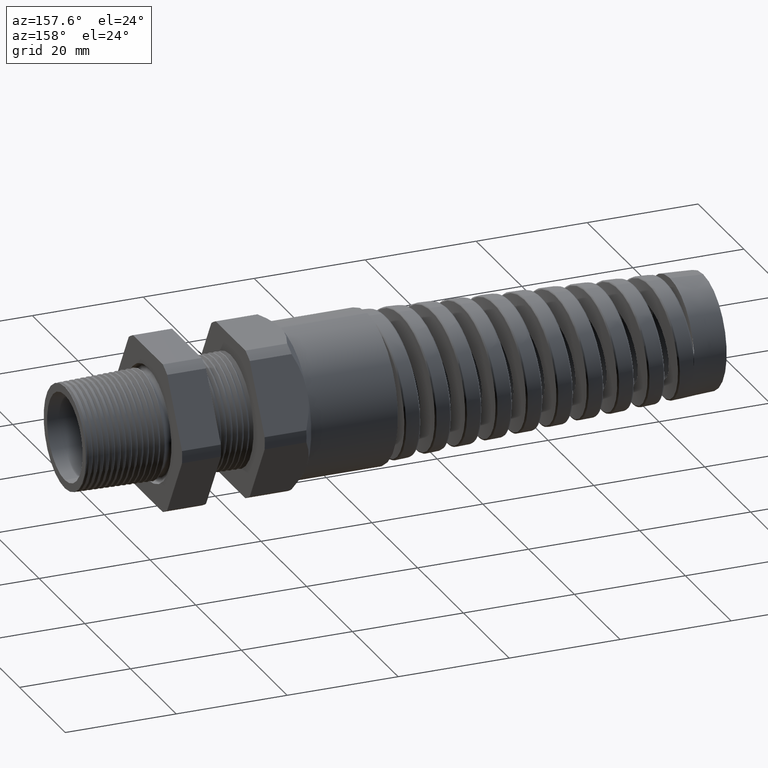
[diagram: clean part render]
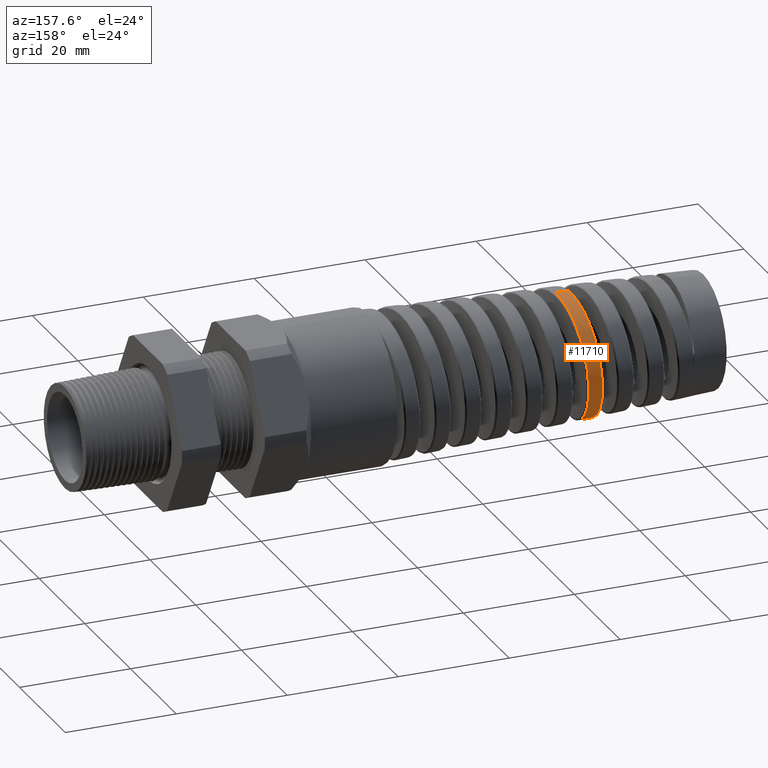
[diagram: same view with one face highlighted and labeled with its STEP entity id]
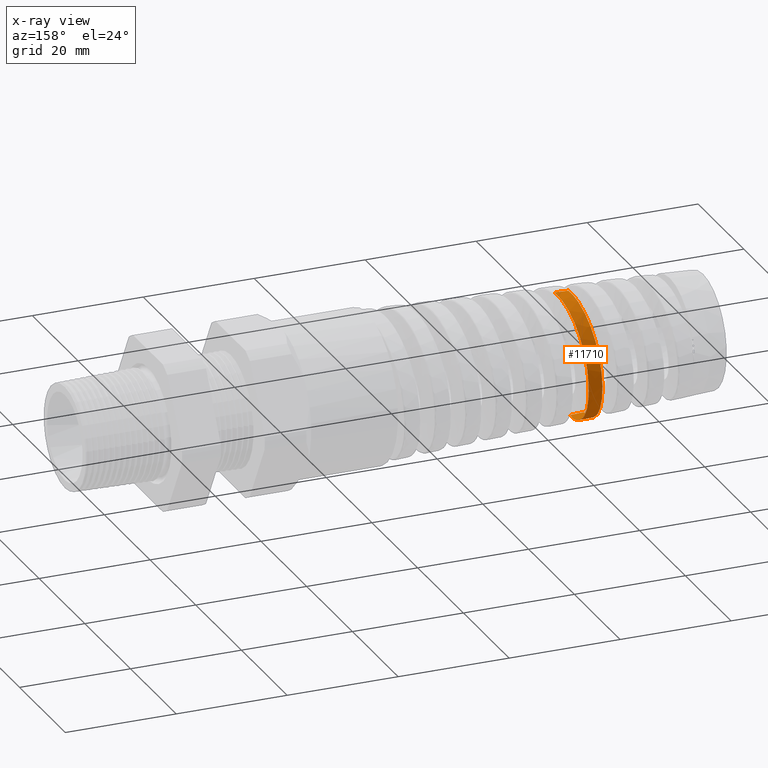
[diagram: x-ray of the same camera — body ghosted, the highlighted face saturated]
A machine part, auxiliary view. The second image highlights one B-rep face of the part: STEP entity #11710.
The next image is the same camera in x-ray: the body ghosted, the highlighted face saturated — about 0% of this face is hidden behind the body in this view.
In plain terms, the highlighted conical surface has half-angle 2.5 deg.
Its self-contained STEP definition (entity closure, byte-faithful):
#8518 = CARTESIAN_POINT ( 'NONE',  ( -3.367031305301783700, 0.3860928506320817600, -0.2208480517431465600 ) ) ;
#8519 = CARTESIAN_POINT ( 'NONE',  ( -3.368196545270383300, 0.3785036603353476600, -0.2335203228107358700 ) ) ;
#8520 = CARTESIAN_POINT ( 'NONE',  ( -3.371656273184212800, 0.3541431900587626000, -0.2699737989833829700 ) ) ;
#8521 = CARTESIAN_POINT ( 'NONE',  ( -3.373931672052358400, 0.3357246574495469400, -0.2923959071443837400 ) ) ;
#8522 = CARTESIAN_POINT ( 'NONE',  ( -3.378521007138563600, 0.2945981801766688900, -0.3335271060106560500 ) ) ;
#8523 = CARTESIAN_POINT ( 'NONE',  ( -3.380853890803841000, 0.2716590228567579100, -0.3523334297242982600 ) ) ;
#8524 = CARTESIAN_POINT ( 'NONE',  ( -3.385452934840462700, 0.2232762630547042400, -0.3845867024945759900 ) ) ;
#8525 = CARTESIAN_POINT ( 'NONE',  ( -3.387735882063358100, 0.1976752809022793400, -0.3982527912921002300 ) ) ;
#8526 = CARTESIAN_POINT ( 'NONE',  ( -3.391200923665438300, 0.1571248361874358900, -0.4149902268562945500 ) ) ;
#8527 = CARTESIAN_POINT ( 'NONE',  ( -3.392365993333061900, 0.1432116091832861300, -0.4199399008667468200 ) ) ;
#8528 = CARTESIAN_POINT ( 'NONE',  ( -3.394672662137165500, 0.1152653071098163300, -0.4283499550344370100 ) ) ;
#8529 = CARTESIAN_POINT ( 'NONE',  ( -3.396968235514727500, 0.08705682681685479600, -0.4353380223494181500 ) ) ;
#8530 = CARTESIAN_POINT ( 'NONE',  ( -3.399264514733427900, 0.05833493903158334200, -0.4395316293767078100 ) ) ;
#8531 = CARTESIAN_POINT ( 'NONE',  ( -3.401571107459511600, 0.02935425207513858700, -0.4423122194634988000 ) ) ;
#8532 = CARTESIAN_POINT ( 'NONE',  ( -3.402734380631594800, 0.01467357891013543200, -0.4429953379754140200 ) ) ;
#8533 = CARTESIAN_POINT ( 'NONE',  ( -3.403896130082235700, -2.793416318180109300E-016, -0.4429446148989755700 ) ) ;
#8534 = CARTESIAN_POINT ( 'NONE',  ( -3.293722496634710500, 9.699927423887607600E-013, 0.4477548996189513700 ) ) ;
#8535 = B_SPLINE_CURVE_WITH_KNOTS ( 'NONE', 3,
 ( #8533, #8532, #8531, #8530, #8529, #8528, #8527, #8526, #8525, #8524, #8523, #8522, #8521, #8520, #8519, #8518, #8589, #8588, #8587, #8586, #8585, #8584, #8583, #8582, #8581, #8580, #8579, #8578, #8577, #8576, #8575, #8574, #8573, #8572, #8571, #8570, #8569, #8568, #8567, #8566, #8565, #8564, #8563, #8562, #8561, #8560, #8559, #8558, #8557, #8556 ),
 .UNSPECIFIED., .F., .F.,
 ( 4, 2, 1, 2, 2, 2, 2, 2, 2, 2, 2, 2, 2, 2, 2, 2, 2, 2, 2, 2, 1, 2, 2, 2, 2, 4 ),
 ( 0.1916504313071185400, 0.1927718956376086300, 0.1938933599680987300, 0.1950148242985888200, 0.1961362886290789200, 0.1983792172900591400, 0.2006221459510393300, 0.2028650746120195200, 0.2039865389425096200, 0.2051080032729997200, 0.2062294676034898100, 0.2073509319339799100, 0.2095938605949601000, 0.2107153249254502300, 0.2118367892559403200, 0.2140797179169205100, 0.2152011822474106400, 0.2163226465779007300, 0.2185655752388809300, 0.2196870395693710200, 0.2208085038998611500, 0.2219299682303512400, 0.2230514325608413400, 0.2252943612218215600, 0.2264158255523116600, 0.2275372898828017500 ),
 .UNSPECIFIED. ) ;
#8536 = CARTESIAN_POINT ( 'NONE',  ( -3.403896130082235700, -2.793416318180109300E-016, -0.4429446148989755700 ) ) ;
#8537 = DIRECTION ( 'NONE',  ( 0.0000000000000000000, 0.0000000000000000000, -1.000000000000000000 ) ) ;
#8538 = DIRECTION ( 'NONE',  ( 1.000000000000000000, 0.0000000000000000000, 0.0000000000000000000 ) ) ;
#8539 = CARTESIAN_POINT ( 'NONE',  ( -1.409999999999999900, 0.0000000000000000000, 0.0000000000000000000 ) ) ;
#8540 = AXIS2_PLACEMENT_3D ( 'NONE', #8539, #8538, #8537 ) ;
#8541 = CONICAL_SURFACE ( 'NONE', #8540, 0.5299999999999998000, 0.04363323129985853500 ) ;
#8542 = FACE_OUTER_BOUND ( 'NONE', #11711, .T. ) ;
#8551 = CARTESIAN_POINT ( 'NONE',  ( -3.194580830620718200, 1.628636239715142200E-016, 0.4520835182386430700 ) ) ;
#8552 = DIRECTION ( 'NONE',  ( 0.9990482215818576900, 5.341834311772759500E-018, 0.04361938736533629800 ) ) ;
#8553 = VECTOR ( 'NONE', #8552, 39.37007874015748100 ) ;
#8554 = CARTESIAN_POINT ( 'NONE',  ( -1.409999999999999900, 6.490628035480970000E-017, 0.5299999999999998000 ) ) ;
#8555 = LINE ( 'NONE', #8554, #8553 ) ;
#8556 = CARTESIAN_POINT ( 'NONE',  ( -3.293722496634710500, 9.699927423887607600E-013, 0.4477548996189513700 ) ) ;
#8557 = CARTESIAN_POINT ( 'NONE',  ( -3.294862992153494200, 0.01455632133746561800, 0.4477051045091865500 ) ) ;
#8558 = CARTESIAN_POINT ( 'NONE',  ( -3.296013603617002000, 0.02922847881703444900, 0.4469406481647246700 ) ) ;
#8559 = CARTESIAN_POINT ( 'NONE',  ( -3.298315589847282200, 0.05842832421868598300, 0.4439666690078814500 ) ) ;
#8560 = CARTESIAN_POINT ( 'NONE',  ( -3.299458203064546100, 0.07284483074494953200, 0.4417746942496169100 ) ) ;
#8561 = CARTESIAN_POINT ( 'NONE',  ( -3.302873593262815700, 0.1155596988243774300, 0.4331474966600551400 ) ) ;
#8562 = CARTESIAN_POINT ( 'NONE',  ( -3.305134949618273100, 0.1433283042973972400, 0.4246800676644632600 ) ) ;
#8563 = CARTESIAN_POINT ( 'NONE',  ( -3.308577826082505600, 0.1838868420724205400, 0.4078039895763990700 ) ) ;
#8564 = CARTESIAN_POINT ( 'NONE',  ( -3.309732935111467300, 0.1972061836554490100, 0.4014737223511588000 ) ) ;
#8565 = CARTESIAN_POINT ( 'NONE',  ( -3.312020895158147100, 0.2228933793844483600, 0.3876862948019258500 ) ) ;
#8566 = CARTESIAN_POINT ( 'NONE',  ( -3.314299353199893400, 0.2477815342513340600, 0.3727130761028423800 ) ) ;
#8567 = CARTESIAN_POINT ( 'NONE',  ( -3.316578375427750500, 0.2710939291386337800, 0.3554041235777501400 ) ) ;
#8568 = CARTESIAN_POINT ( 'NONE',  ( -3.318865754082336700, 0.2936072331850120300, 0.3369118246992327000 ) ) ;
#8569 = CARTESIAN_POINT ( 'NONE',  ( -3.320019677127271900, 0.3045168517258016200, 0.3270197215245543300 ) ) ;
#8570 = CARTESIAN_POINT ( 'NONE',  ( -3.323469424973764400, 0.3355903305285569100, 0.2959079623354984900 ) ) ;
#8571 = CARTESIAN_POINT ( 'NONE',  ( -3.325737339212635500, 0.3539888243025586800, 0.2734410562300276200 ) ) ;
#8572 = CARTESIAN_POINT ( 'NONE',  ( -3.329161831239481700, 0.3782008782008423600, 0.2372259761421035300 ) ) ;
#8573 = CARTESIAN_POINT ( 'NONE',  ( -3.330306917552825500, 0.3857032847263169300, 0.2247321734212437100 ) ) ;
#8574 = CARTESIAN_POINT ( 'NONE',  ( -3.332614535608780400, 0.3995373012401914300, 0.1988759046568426800 ) ) ;
#8575 = CARTESIAN_POINT ( 'NONE',  ( -3.333771653952269300, 0.4058289816055291000, 0.1855709445503184200 ) ) ;
#8576 = CARTESIAN_POINT ( 'NONE',  ( -3.337207756871700700, 0.4225532160756768600, 0.1452068508578617200 ) ) ;
#8577 = CARTESIAN_POINT ( 'NONE',  ( -3.339474852809909900, 0.4309926820378408600, 0.1174535881184601800 ) ) ;
#8578 = CARTESIAN_POINT ( 'NONE',  ( -3.342914678529534300, 0.4395673176670109600, 0.07455800236112893100 ) ) ;
#8579 = CARTESIAN_POINT ( 'NONE',  ( -3.344074248631328400, 0.4417454704162236400, 0.05996462577478257900 ) ) ;
#8580 = CARTESIAN_POINT ( 'NONE',  ( -3.346379275924301000, 0.4446284118958274700, 0.03083376603887695600 ) ) ;
#8581 = CARTESIAN_POINT ( 'NONE',  ( -3.347525002502067500, 0.4453442208944755100, 0.01629454590489599900 ) ) ;
#8582 = CARTESIAN_POINT ( 'NONE',  ( -3.350957031828650600, 0.4453685202142671500, -0.02724526568593115700 ) ) ;
#8583 = CARTESIAN_POINT ( 'NONE',  ( -3.353235420849962200, 0.4425744662910391400, -0.05616898588576020600 ) ) ;
#8584 = CARTESIAN_POINT ( 'NONE',  ( -3.356703814741866400, 0.4340126217496392800, -0.09938943904794311800 ) ) ;
#8585 = CARTESIAN_POINT ( 'NONE',  ( -3.357857150330217300, 0.4304499930933023400, -0.1136187452072945400 ) ) ;
#8586 = CARTESIAN_POINT ( 'NONE',  ( -3.360149381920144700, 0.4220116024355653500, -0.1414693260830070800 ) ) ;
#8587 = CARTESIAN_POINT ( 'NONE',  ( -3.361291681973387600, 0.4171274918349587300, -0.1551332932783174300 ) ) ;
#8588 = CARTESIAN_POINT ( 'NONE',  ( -3.363579902431608600, 0.4060415948426029900, -0.1819424061593731000 ) ) ;
#8589 = CARTESIAN_POINT ( 'NONE',  ( -3.364725805885398400, 0.3998398435142586100, -0.1950875670860182400 ) ) ;
#8590 = CARTESIAN_POINT ( 'NONE',  ( -3.282583523410094600, 0.2621681050190832800, -0.3638718244695826100 ) ) ;
#8591 = CARTESIAN_POINT ( 'NONE',  ( -3.281440430440820700, 0.2739742991853760200, -0.3551350785250692000 ) ) ;
#8592 = CARTESIAN_POINT ( 'NONE',  ( -3.279140598003530200, 0.2968067816084102900, -0.3364202928968831900 ) ) ;
#8593 = CARTESIAN_POINT ( 'NONE',  ( -3.277980583691391600, 0.3078573554151103900, -0.3264068534933281000 ) ) ;
#8594 = CARTESIAN_POINT ( 'NONE',  ( -3.274536358425275600, 0.3391123627046863100, -0.2951386176678336700 ) ) ;
#8595 = CARTESIAN_POINT ( 'NONE',  ( -3.272263332115488100, 0.3576849421215683200, -0.2724877576314735900 ) ) ;
#8596 = CARTESIAN_POINT ( 'NONE',  ( -3.268825382691723700, 0.3821756935219945400, -0.2358320450154959000 ) ) ;
#8597 = CARTESIAN_POINT ( 'NONE',  ( -3.267670720263642400, 0.3897988414673159700, -0.2231163309756956400 ) ) ;
#8598 = CARTESIAN_POINT ( 'NONE',  ( -3.265362285570441200, 0.4037571662343680800, -0.1969636543734687700 ) ) ;
#8599 = CARTESIAN_POINT ( 'NONE',  ( -3.264218112402853300, 0.4100365654951855200, -0.1836432862415699800 ) ) ;
#8600 = CARTESIAN_POINT ( 'NONE',  ( -3.260795899704928700, 0.4268405199831540900, -0.1429743394918893100 ) ) ;
#8601 = CARTESIAN_POINT ( 'NONE',  ( -3.258527931783600500, 0.4353499717068839400, -0.1149245899072610500 ) ) ;
#8602 = CARTESIAN_POINT ( 'NONE',  ( -3.255075708772611400, 0.4439781454017640600, -0.07141668192033012700 ) ) ;
#8603 = CARTESIAN_POINT ( 'NONE',  ( -3.253917690592357500, 0.4461470333263903900, -0.05668529532709922600 ) ) ;
#8604 = CARTESIAN_POINT ( 'NONE',  ( -3.251625990148630400, 0.4489991437346120800, -0.02738845588538887200 ) ) ;
#8605 = CARTESIAN_POINT ( 'NONE',  ( -3.250485907808339000, 0.4497005573260614600, -0.01274215841037834200 ) ) ;
#8606 = CARTESIAN_POINT ( 'NONE',  ( -3.248209061847441100, 0.4496761092122282800, 0.01654562829935311500 ) ) ;
#8607 = CARTESIAN_POINT ( 'NONE',  ( -3.247071948064516300, 0.4489502504187322100, 0.03118709019094721700 ) ) ;
#8608 = CARTESIAN_POINT ( 'NONE',  ( -3.244787735419034600, 0.4460524417431203600, 0.06046409968243710700 ) ) ;
#8609 = CARTESIAN_POINT ( 'NONE',  ( -3.243634592455172200, 0.4438638675512729400, 0.07517590796990544800 ) ) ;
#8610 = CARTESIAN_POINT ( 'NONE',  ( -3.240187888643149000, 0.4351642012109387400, 0.1187052318368900900 ) ) ;
#8611 = CARTESIAN_POINT ( 'NONE',  ( -3.237920274135252200, 0.4266111539188423600, 0.1467484574763799600 ) ) ;
#8612 = CARTESIAN_POINT ( 'NONE',  ( -3.234501183467858100, 0.4097666199282412000, 0.1873844589012359000 ) ) ;
#8613 = CARTESIAN_POINT ( 'NONE',  ( -3.233358797177967100, 0.4034778226038889800, 0.2006899706881838900 ) ) ;
#8614 = CARTESIAN_POINT ( 'NONE',  ( -3.231060240938439700, 0.3895125563927291400, 0.2268065165232945900 ) ) ;
#8615 = CARTESIAN_POINT ( 'NONE',  ( -3.229909943242326200, 0.3818675642342462800, 0.2395423753721418700 ) ) ;
#8616 = CARTESIAN_POINT ( 'NONE',  ( -3.226490935284006800, 0.3573457543734623900, 0.2762072934374993900 ) ) ;
#8617 = CARTESIAN_POINT ( 'NONE',  ( -3.224232186639433500, 0.3387699687160152800, 0.2988524516826845400 ) ) ;
#8618 = CARTESIAN_POINT ( 'NONE',  ( -3.220805552374220500, 0.3075556066120102000, 0.3301089345825136700 ) ) ;
#8619 = CARTESIAN_POINT ( 'NONE',  ( -3.219650609970384100, 0.2965225170314449400, 0.3401231555349136200 ) ) ;
#8620 = CARTESIAN_POINT ( 'NONE',  ( -3.217357424285682800, 0.2736863558580776600, 0.3588808452618892400 ) ) ;
#8621 = CARTESIAN_POINT ( 'NONE',  ( -3.216218488864355200, 0.2618838012535080200, 0.3676381524965988100 ) ) ;
#8622 = CARTESIAN_POINT ( 'NONE',  ( -3.212812219768129900, 0.2253522316947595100, 0.3920914219332697900 ) ) ;
#8623 = CARTESIAN_POINT ( 'NONE',  ( -3.210554121751561000, 0.1995101370949145500, 0.4059860723750489100 ) ) ;
#8624 = CARTESIAN_POINT ( 'NONE',  ( -3.207111461713438900, 0.1584412496675062800, 0.4230855701599811100 ) ) ;
#8625 = CARTESIAN_POINT ( 'NONE',  ( -3.205966310454970300, 0.1445030421154544800, 0.4280946258624143100 ) ) ;
#8626 = CARTESIAN_POINT ( 'NONE',  ( -3.203690770066065500, 0.1164008026610181500, 0.4366769207629327400 ) ) ;
#8627 = CARTESIAN_POINT ( 'NONE',  ( -3.201423210735673000, 0.08799160307989926900, 0.4438573780116052400 ) ) ;
#8628 = CARTESIAN_POINT ( 'NONE',  ( -3.199152499431161500, 0.05897591783563659700, 0.4482612181277906800 ) ) ;
#8629 = CARTESIAN_POINT ( 'NONE',  ( -3.196872184893963200, 0.02965189763601432800, 0.4512505215322421500 ) ) ;
#8630 = CARTESIAN_POINT ( 'NONE',  ( -3.195721170336528200, 0.01476033763390118500, 0.4520337299314147700 ) ) ;
#8631 = CARTESIAN_POINT ( 'NONE',  ( -3.194580830620718200, 1.628636239715142200E-016, 0.4520835182386430700 ) ) ;
#8632 = B_SPLINE_CURVE_WITH_KNOTS ( 'NONE', 3,
 ( #8631, #8630, #8629, #8628, #8627, #8626, #8625, #8624, #8623, #8622, #8621, #8620, #8619, #8618, #8617, #8616, #8615, #8614, #8613, #8612, #8611, #8610, #8609, #8608, #8607, #8606, #8605, #8604, #8603, #8602, #8601, #8600, #8599, #8598, #8597, #8596, #8595, #8594, #8593, #8592, #8591, #8590, #8671, #8670, #8669, #8668, #8667, #8666, #8665, #8664, #8663 ),
 .UNSPECIFIED., .F., .F.,
 ( 4, 2, 1, 2, 2, 2, 2, 2, 2, 2, 2, 2, 2, 2, 2, 2, 2, 2, 2, 2, 2, 2, 2, 2, 2, 4 ),
 ( 0.4652300943123867100, 0.4663626456146628400, 0.4674951969169389200, 0.4686277482192150500, 0.4697602995214911200, 0.4720254021260433300, 0.4731579534283194600, 0.4742905047305955300, 0.4765556073351477400, 0.4776881586374238100, 0.4788207099396999400, 0.4810858125442521400, 0.4822183638465282200, 0.4833509151488042900, 0.4844834664510804200, 0.4856160177533565000, 0.4878811203579087000, 0.4890136716601847800, 0.4901462229624609100, 0.4924113255670130600, 0.4935438768692891900, 0.4946764281715652600, 0.4969415307761174700, 0.4992066333806696700, 0.5003391846829458000, 0.5014717359852218800 ),
 .UNSPECIFIED. ) ;
#8633 = CARTESIAN_POINT ( 'NONE',  ( -3.304414587255712000, 4.639955372558836600E-013, -0.4472880728607751500 ) ) ;
#8659 = DIRECTION ( 'NONE',  ( 0.9990482215818576900, 0.0000000000000000000, -0.04361938736533629800 ) ) ;
#8660 = VECTOR ( 'NONE', #8659, 39.37007874015748100 ) ;
#8661 = CARTESIAN_POINT ( 'NONE',  ( -1.409999999999999900, 0.0000000000000000000, -0.5299999999999998000 ) ) ;
#8662 = LINE ( 'NONE', #8661, #8660 ) ;
#8663 = CARTESIAN_POINT ( 'NONE',  ( -3.304414587255712000, 4.639955372558836600E-013, -0.4472880728607751500 ) ) ;
#8664 = CARTESIAN_POINT ( 'NONE',  ( -3.303261489120413100, 0.01473648821249725000, -0.4473384182126129400 ) ) ;
#8665 = CARTESIAN_POINT ( 'NONE',  ( -3.302096116552404800, 0.02963320815239150300, -0.4466508078309053800 ) ) ;
#8666 = CARTESIAN_POINT ( 'NONE',  ( -3.299789358493085100, 0.05901987577257018800, -0.4438263775429226500 ) ) ;
#8667 = CARTESIAN_POINT ( 'NONE',  ( -3.298644358176867600, 0.07355199251922392400, -0.4416976073084909500 ) ) ;
#8668 = CARTESIAN_POINT ( 'NONE',  ( -3.295214862800119900, 0.1166742439970334900, -0.4332108994191351500 ) ) ;
#8669 = CARTESIAN_POINT ( 'NONE',  ( -3.292935678555306600, 0.1447965790287600900, -0.4247725451596384100 ) ) ;
#8670 = CARTESIAN_POINT ( 'NONE',  ( -3.288295869780918100, 0.1997199432233980600, -0.4021084115269589800 ) ) ;
#8671 = CARTESIAN_POINT ( 'NONE',  ( -3.286011697479432700, 0.2256067018292668100, -0.3882603683463696800 ) ) ;
#11710 = ADVANCED_FACE ( 'NONE', ( #8542 ), #8541, .T. ) ;
#11711 = EDGE_LOOP ( 'NONE', ( #11712, #11716, #11719, #11722 ) ) ;
#11712 = ORIENTED_EDGE ( 'NONE', *, *, #11713, .T. ) ;
#11713 = EDGE_CURVE ( 'NONE', #11714, #11715, #8535, .T. ) ;
#11714 = VERTEX_POINT ( 'NONE', #8536 ) ;
#11715 = VERTEX_POINT ( 'NONE', #8534 ) ;
#11716 = ORIENTED_EDGE ( 'NONE', *, *, #11717, .T. ) ;
#11717 = EDGE_CURVE ( 'NONE', #11715, #11718, #8555, .T. ) ;
#11718 = VERTEX_POINT ( 'NONE', #8551 ) ;
#11719 = ORIENTED_EDGE ( 'NONE', *, *, #11720, .T. ) ;
#11720 = EDGE_CURVE ( 'NONE', #11718, #11721, #8632, .T. ) ;
#11721 = VERTEX_POINT ( 'NONE', #8633 ) ;
#11722 = ORIENTED_EDGE ( 'NONE', *, *, #11723, .F. ) ;
#11723 = EDGE_CURVE ( 'NONE', #11714, #11721, #8662, .T. ) ;